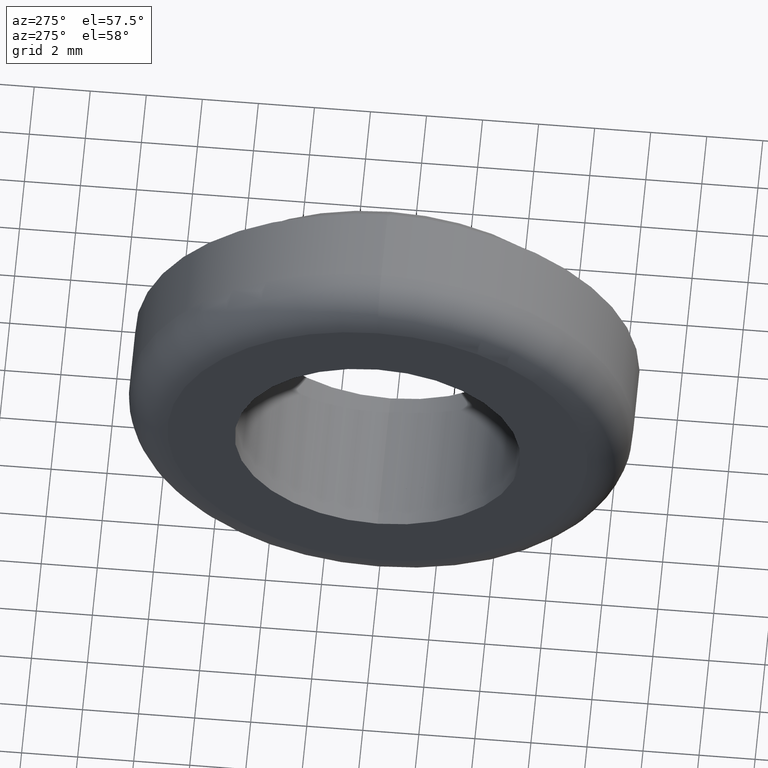
[diagram: clean part render]
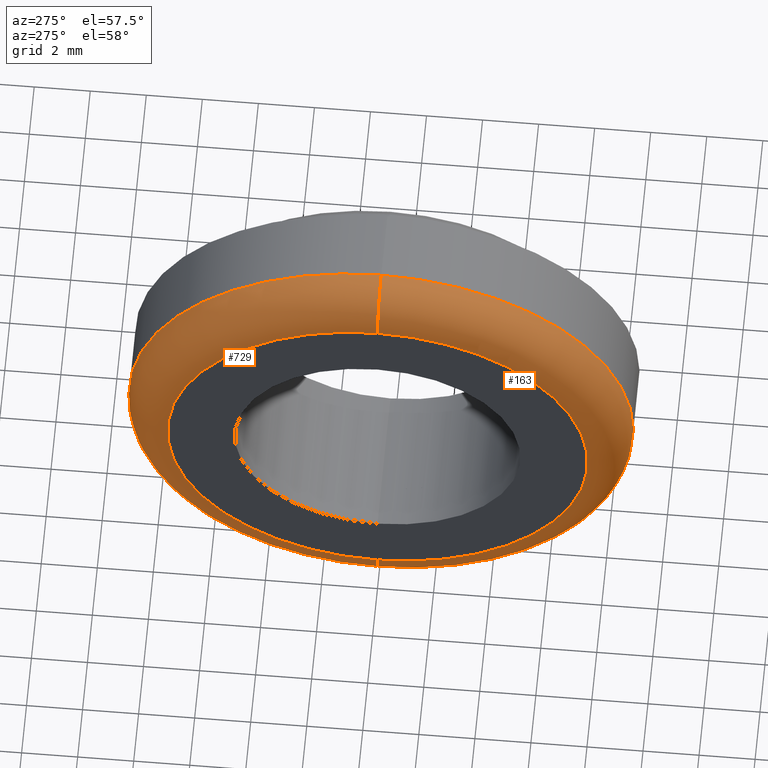
[diagram: same view with one multi-face feature highlighted, each face labeled with its STEP entity id]
A machine part, auxiliary view. The highlighted faces form ONE feature: a constant-radius fillet chain: 2 tangent blend faces with common blend radius 1.5 mm. The faces share edges in the B-rep.
Their STEP definitions:
[1] entity #729 (Torus):
#11 = CARTESIAN_POINT ( 'NONE',  ( 1.500000000000000000, 1.102182119232617700E-015, -9.000000000000000000 ) ) ;
#35 = CARTESIAN_POINT ( 'NONE',  ( 1.500000000000000000, 0.0000000000000000000, 9.000000000000000000 ) ) ;
#61 = VERTEX_POINT ( 'NONE', #35 ) ;
#65 = AXIS2_PLACEMENT_3D ( 'NONE', #479, #697, #322 ) ;
#83 = ORIENTED_EDGE ( 'NONE', *, *, #527, .T. ) ;
#95 = AXIS2_PLACEMENT_3D ( 'NONE', #139, #136, #97 ) ;
#97 = DIRECTION ( 'NONE',  ( 0.0000000000000000000, 0.0000000000000000000, -1.000000000000000000 ) ) ;
#102 = AXIS2_PLACEMENT_3D ( 'NONE', #283, #269, #544 ) ;
#136 = DIRECTION ( 'NONE',  ( 1.000000000000000000, 0.0000000000000000000, 0.0000000000000000000 ) ) ;
#139 = CARTESIAN_POINT ( 'NONE',  ( 1.500000000000000000, 0.0000000000000000000, 0.0000000000000000000 ) ) ;
#146 = CIRCLE ( 'NONE', #678, 1.499999999999999600 ) ;
#151 = EDGE_CURVE ( 'NONE', #187, #61, #676, .T. ) ;
#155 = CARTESIAN_POINT ( 'NONE',  ( 1.500000000000000000, 0.0000000000000000000, -7.500000000000000000 ) ) ;
#187 = VERTEX_POINT ( 'NONE', #11 ) ;
#225 = ORIENTED_EDGE ( 'NONE', *, *, #661, .F. ) ;
#231 = ORIENTED_EDGE ( 'NONE', *, *, #555, .F. ) ;
#233 = CARTESIAN_POINT ( 'NONE',  ( 0.0000000000000000000, 1.010333609296566400E-015, 7.500000000000000000 ) ) ;
#269 = DIRECTION ( 'NONE',  ( 1.000000000000000000, 0.0000000000000000000, 0.0000000000000000000 ) ) ;
#283 = CARTESIAN_POINT ( 'NONE',  ( 1.500000000000000000, 0.0000000000000000000, 0.0000000000000000000 ) ) ;
#322 = DIRECTION ( 'NONE',  ( 0.0000000000000000000, 0.0000000000000000000, -1.000000000000000000 ) ) ;
#348 = VERTEX_POINT ( 'NONE', #233 ) ;
#409 = CIRCLE ( 'NONE', #65, 7.500000000000000000 ) ;
#415 = CARTESIAN_POINT ( 'NONE',  ( 1.500000000000000000, 9.184850993605147900E-016, 7.500000000000000000 ) ) ;
#423 = DIRECTION ( 'NONE',  ( 0.0000000000000000000, 1.000000000000000000, -1.224646799147353200E-016 ) ) ;
#479 = CARTESIAN_POINT ( 'NONE',  ( 0.0000000000000000000, 0.0000000000000000000, 0.0000000000000000000 ) ) ;
#485 = CARTESIAN_POINT ( 'NONE',  ( 0.0000000000000000000, 0.0000000000000000000, -7.500000000000000000 ) ) ;
#508 = DIRECTION ( 'NONE',  ( 0.0000000000000000000, 0.0000000000000000000, -1.000000000000000000 ) ) ;
#527 = EDGE_CURVE ( 'NONE', #348, #61, #564, .T. ) ;
#538 = ORIENTED_EDGE ( 'NONE', *, *, #151, .F. ) ;
#544 = DIRECTION ( 'NONE',  ( 0.0000000000000000000, 0.0000000000000000000, -1.000000000000000000 ) ) ;
#555 = EDGE_CURVE ( 'NONE', #348, #714, #409, .T. ) ;
#558 = EDGE_LOOP ( 'NONE', ( #231, #83, #538, #225 ) ) ;
#564 = CIRCLE ( 'NONE', #689, 1.499999999999999600 ) ;
#594 = FACE_OUTER_BOUND ( 'NONE', #558, .T. ) ;
#648 = DIRECTION ( 'NONE',  ( 0.0000000000000000000, -1.000000000000000000, 0.0000000000000000000 ) ) ;
#661 = EDGE_CURVE ( 'NONE', #714, #187, #146, .T. ) ;
#676 = CIRCLE ( 'NONE', #102, 9.000000000000000000 ) ;
#678 = AXIS2_PLACEMENT_3D ( 'NONE', #155, #648, #508 ) ;
#689 = AXIS2_PLACEMENT_3D ( 'NONE', #415, #423, #707 ) ;
#697 = DIRECTION ( 'NONE',  ( -1.000000000000000000, -0.0000000000000000000, -0.0000000000000000000 ) ) ;
#707 = DIRECTION ( 'NONE',  ( 0.0000000000000000000, 1.224646799147353500E-016, 1.000000000000000000 ) ) ;
#710 = TOROIDAL_SURFACE ( 'NONE', #95, 7.500000000000000000, 1.500000000000000000 ) ;
#714 = VERTEX_POINT ( 'NONE', #485 ) ;
#729 = ADVANCED_FACE ( 'NONE', ( #594 ), #710, .T. ) ;
[2] entity #163 (Torus):
#11 = CARTESIAN_POINT ( 'NONE',  ( 1.500000000000000000, 1.102182119232617700E-015, -9.000000000000000000 ) ) ;
#35 = CARTESIAN_POINT ( 'NONE',  ( 1.500000000000000000, 0.0000000000000000000, 9.000000000000000000 ) ) ;
#39 = CARTESIAN_POINT ( 'NONE',  ( 1.500000000000000000, 0.0000000000000000000, 0.0000000000000000000 ) ) ;
#44 = DIRECTION ( 'NONE',  ( -1.000000000000000000, -0.0000000000000000000, -0.0000000000000000000 ) ) ;
#61 = VERTEX_POINT ( 'NONE', #35 ) ;
#82 = EDGE_CURVE ( 'NONE', #61, #187, #725, .T. ) ;
#146 = CIRCLE ( 'NONE', #678, 1.499999999999999600 ) ;
#147 = ORIENTED_EDGE ( 'NONE', *, *, #184, .F. ) ;
#155 = CARTESIAN_POINT ( 'NONE',  ( 1.500000000000000000, 0.0000000000000000000, -7.500000000000000000 ) ) ;
#163 = ADVANCED_FACE ( 'NONE', ( #211 ), #656, .T. ) ;
#167 = DIRECTION ( 'NONE',  ( 0.0000000000000000000, 0.0000000000000000000, -1.000000000000000000 ) ) ;
#171 = AXIS2_PLACEMENT_3D ( 'NONE', #691, #44, #651 ) ;
#184 = EDGE_CURVE ( 'NONE', #714, #348, #453, .T. ) ;
#187 = VERTEX_POINT ( 'NONE', #11 ) ;
#211 = FACE_OUTER_BOUND ( 'NONE', #486, .T. ) ;
#233 = CARTESIAN_POINT ( 'NONE',  ( 0.0000000000000000000, 1.010333609296566400E-015, 7.500000000000000000 ) ) ;
#240 = ORIENTED_EDGE ( 'NONE', *, *, #527, .F. ) ;
#244 = AXIS2_PLACEMENT_3D ( 'NONE', #641, #517, #584 ) ;
#245 = ORIENTED_EDGE ( 'NONE', *, *, #661, .T. ) ;
#348 = VERTEX_POINT ( 'NONE', #233 ) ;
#364 = ORIENTED_EDGE ( 'NONE', *, *, #82, .F. ) ;
#385 = AXIS2_PLACEMENT_3D ( 'NONE', #39, #614, #167 ) ;
#415 = CARTESIAN_POINT ( 'NONE',  ( 1.500000000000000000, 9.184850993605147900E-016, 7.500000000000000000 ) ) ;
#423 = DIRECTION ( 'NONE',  ( 0.0000000000000000000, 1.000000000000000000, -1.224646799147353200E-016 ) ) ;
#453 = CIRCLE ( 'NONE', #171, 7.500000000000000000 ) ;
#485 = CARTESIAN_POINT ( 'NONE',  ( 0.0000000000000000000, 0.0000000000000000000, -7.500000000000000000 ) ) ;
#486 = EDGE_LOOP ( 'NONE', ( #240, #147, #245, #364 ) ) ;
#508 = DIRECTION ( 'NONE',  ( 0.0000000000000000000, 0.0000000000000000000, -1.000000000000000000 ) ) ;
#517 = DIRECTION ( 'NONE',  ( 1.000000000000000000, 0.0000000000000000000, 0.0000000000000000000 ) ) ;
#527 = EDGE_CURVE ( 'NONE', #348, #61, #564, .T. ) ;
#564 = CIRCLE ( 'NONE', #689, 1.499999999999999600 ) ;
#584 = DIRECTION ( 'NONE',  ( 0.0000000000000000000, 0.0000000000000000000, -1.000000000000000000 ) ) ;
#614 = DIRECTION ( 'NONE',  ( 1.000000000000000000, 0.0000000000000000000, 0.0000000000000000000 ) ) ;
#641 = CARTESIAN_POINT ( 'NONE',  ( 1.500000000000000000, 0.0000000000000000000, 0.0000000000000000000 ) ) ;
#648 = DIRECTION ( 'NONE',  ( 0.0000000000000000000, -1.000000000000000000, 0.0000000000000000000 ) ) ;
#651 = DIRECTION ( 'NONE',  ( 0.0000000000000000000, 0.0000000000000000000, -1.000000000000000000 ) ) ;
#656 = TOROIDAL_SURFACE ( 'NONE', #244, 7.500000000000000000, 1.500000000000000000 ) ;
#661 = EDGE_CURVE ( 'NONE', #714, #187, #146, .T. ) ;
#678 = AXIS2_PLACEMENT_3D ( 'NONE', #155, #648, #508 ) ;
#689 = AXIS2_PLACEMENT_3D ( 'NONE', #415, #423, #707 ) ;
#691 = CARTESIAN_POINT ( 'NONE',  ( 0.0000000000000000000, 0.0000000000000000000, 0.0000000000000000000 ) ) ;
#707 = DIRECTION ( 'NONE',  ( 0.0000000000000000000, 1.224646799147353500E-016, 1.000000000000000000 ) ) ;
#714 = VERTEX_POINT ( 'NONE', #485 ) ;
#725 = CIRCLE ( 'NONE', #385, 9.000000000000000000 ) ;